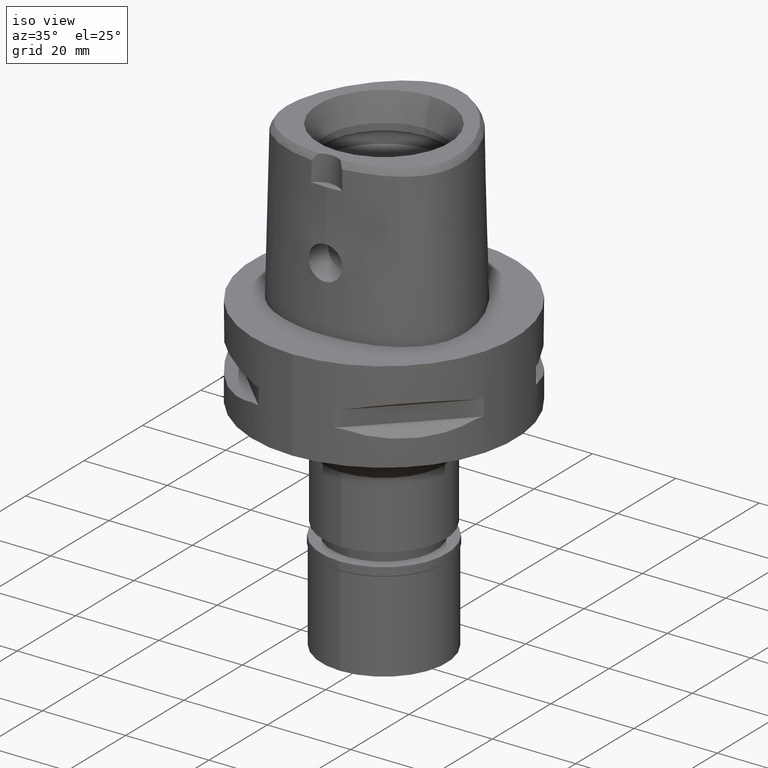
[diagram: clean part render]
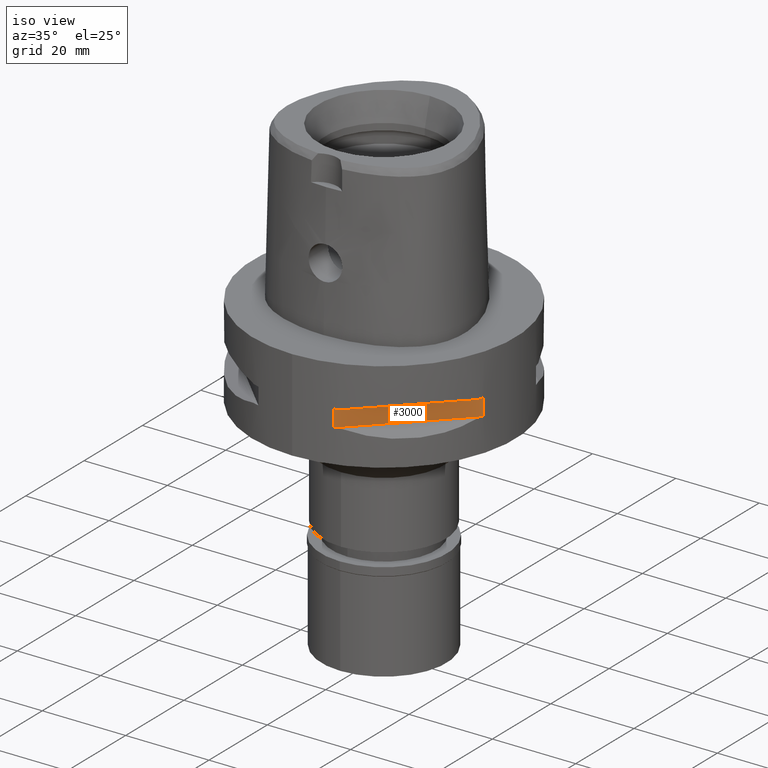
[diagram: same view with one face highlighted and labeled with its STEP entity id]
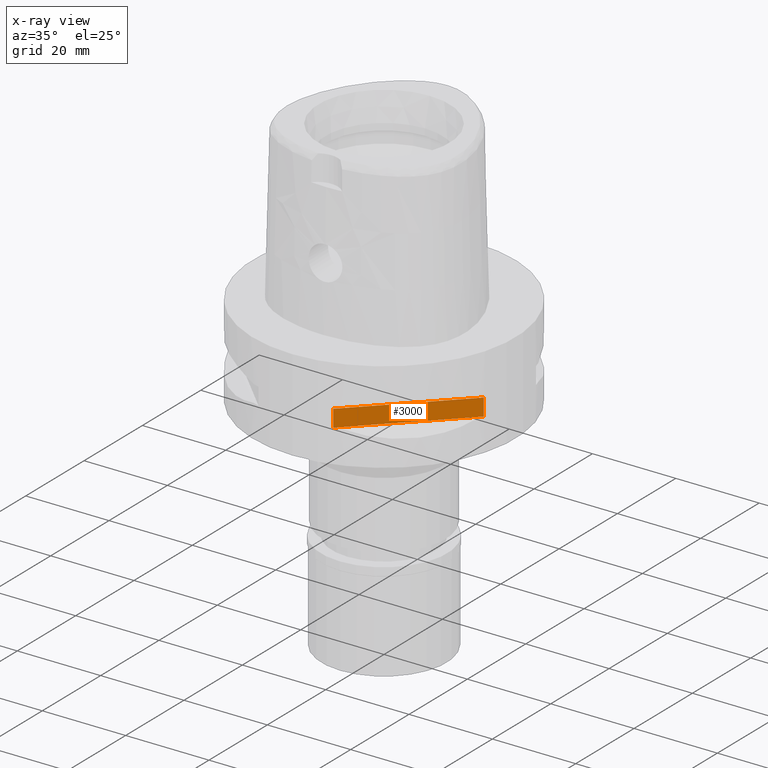
[diagram: x-ray of the same camera — body ghosted, the highlighted face saturated]
A machine part, iso view. The second image highlights one B-rep face of the part: STEP entity #3000.
The next image is the same camera in x-ray: the body ghosted, the highlighted face saturated — about 0% of this face is hidden behind the body in this view.
In plain terms, the highlighted planar face has unit normal (-0.7071, 0.7071, 0).
Its self-contained STEP definition (entity closure, byte-faithful):
#51 = ORIENTED_EDGE ( 'NONE', *, *, #1778, .T. ) ;
#116 = CARTESIAN_POINT ( 'NONE',  ( 8.981198972016999349, -30.19251670572000279, -14.05000000000000071 ) ) ;
#455 = CARTESIAN_POINT ( 'NONE',  ( 8.981198972016999349, -30.19251670572000279, -14.05000000000000071 ) ) ;
#544 = PLANE ( 'NONE',  #4392 ) ;
#673 = EDGE_CURVE ( 'NONE', #1052, #1794, #4042, .T. ) ;
#935 = ORIENTED_EDGE ( 'NONE', *, *, #2734, .F. ) ;
#968 = LINE ( 'NONE', #116, #4794 ) ;
#1052 = VERTEX_POINT ( 'NONE', #3951 ) ;
#1152 = CARTESIAN_POINT ( 'NONE',  ( 30.19251670572000279, -8.981198972019999616, -14.05000000000000071 ) ) ;
#1331 = DIRECTION ( 'NONE',  ( 0.7071067811865474617, 0.7071067811865474617, 0.0000000000000000000 ) ) ;
#1483 = LINE ( 'NONE', #4135, #2472 ) ;
#1488 = LINE ( 'NONE', #2681, #2918 ) ;
#1539 = VERTEX_POINT ( 'NONE', #2353 ) ;
#1583 = VERTEX_POINT ( 'NONE', #1152 ) ;
#1673 = EDGE_LOOP ( 'NONE', ( #935, #4466, #51, #4652 ) ) ;
#1778 = EDGE_CURVE ( 'NONE', #1794, #1583, #968, .T. ) ;
#1794 = VERTEX_POINT ( 'NONE', #455 ) ;
#1843 = CARTESIAN_POINT ( 'NONE',  ( 8.981198972016999349, -30.19251670572000279, -9.950000000000001066 ) ) ;
#2035 = FACE_OUTER_BOUND ( 'NONE', #1673, .T. ) ;
#2058 = DIRECTION ( 'NONE',  ( 0.0000000000000000000, 0.0000000000000000000, 1.000000000000000000 ) ) ;
#2353 = CARTESIAN_POINT ( 'NONE',  ( 30.19251670572000279, -8.981198972016999349, -9.950000000000001066 ) ) ;
#2441 = EDGE_CURVE ( 'NONE', #1583, #1539, #1488, .T. ) ;
#2472 = VECTOR ( 'NONE', #3664, 1000.000000000000114 ) ;
#2621 = VECTOR ( 'NONE', #4810, 1000.000000000000000 ) ;
#2681 = CARTESIAN_POINT ( 'NONE',  ( 30.19251670572000279, -8.981198972016999349, -14.05000000000000071 ) ) ;
#2734 = EDGE_CURVE ( 'NONE', #1052, #1539, #1483, .T. ) ;
#2796 = DIRECTION ( 'NONE',  ( -0.7071067811865475727, 0.7071067811865475727, 0.0000000000000000000 ) ) ;
#2918 = VECTOR ( 'NONE', #3770, 1000.000000000000000 ) ;
#3000 = ADVANCED_FACE ( 'NONE', ( #2035 ), #544, .F. ) ;
#3664 = DIRECTION ( 'NONE',  ( 0.7071067811865474617, 0.7071067811865474617, 0.0000000000000000000 ) ) ;
#3770 = DIRECTION ( 'NONE',  ( 0.0000000000000000000, 0.0000000000000000000, 1.000000000000000000 ) ) ;
#3951 = CARTESIAN_POINT ( 'NONE',  ( 8.981198972019999616, -30.19251670572000279, -9.950000000000001066 ) ) ;
#4042 = LINE ( 'NONE', #1843, #2621 ) ;
#4135 = CARTESIAN_POINT ( 'NONE',  ( 8.981198972016999349, -30.19251670572000279, -9.950000000000001066 ) ) ;
#4238 = CARTESIAN_POINT ( 'NONE',  ( 31.96122650962999856, -7.212489168103000559, -9.950000000000001066 ) ) ;
#4392 = AXIS2_PLACEMENT_3D ( 'NONE', #4238, #2796, #2058 ) ;
#4466 = ORIENTED_EDGE ( 'NONE', *, *, #673, .T. ) ;
#4652 = ORIENTED_EDGE ( 'NONE', *, *, #2441, .T. ) ;
#4794 = VECTOR ( 'NONE', #1331, 1000.000000000000114 ) ;
#4810 = DIRECTION ( 'NONE',  ( 0.0000000000000000000, 0.0000000000000000000, -1.000000000000000000 ) ) ;